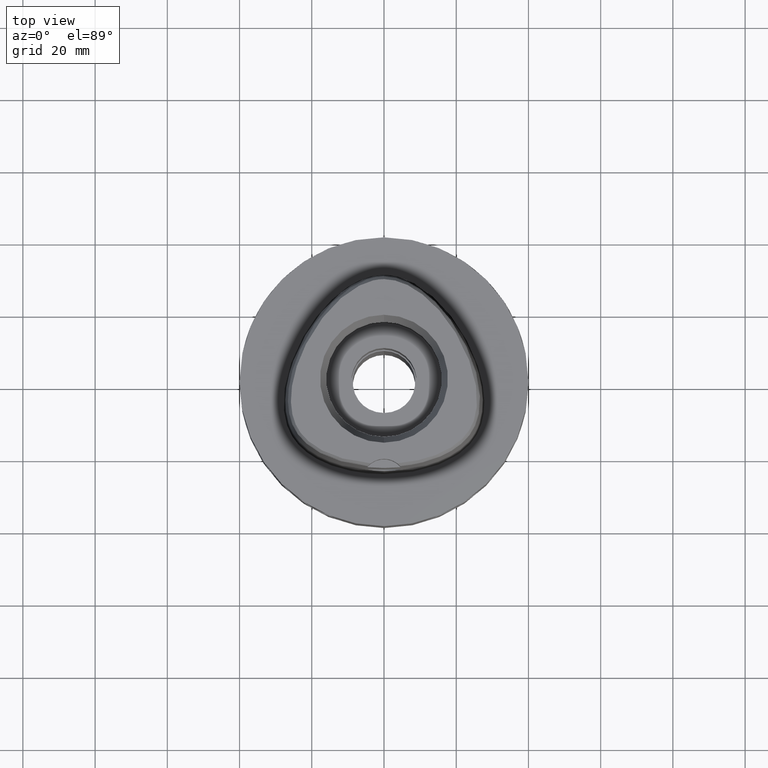
[diagram: clean part render]
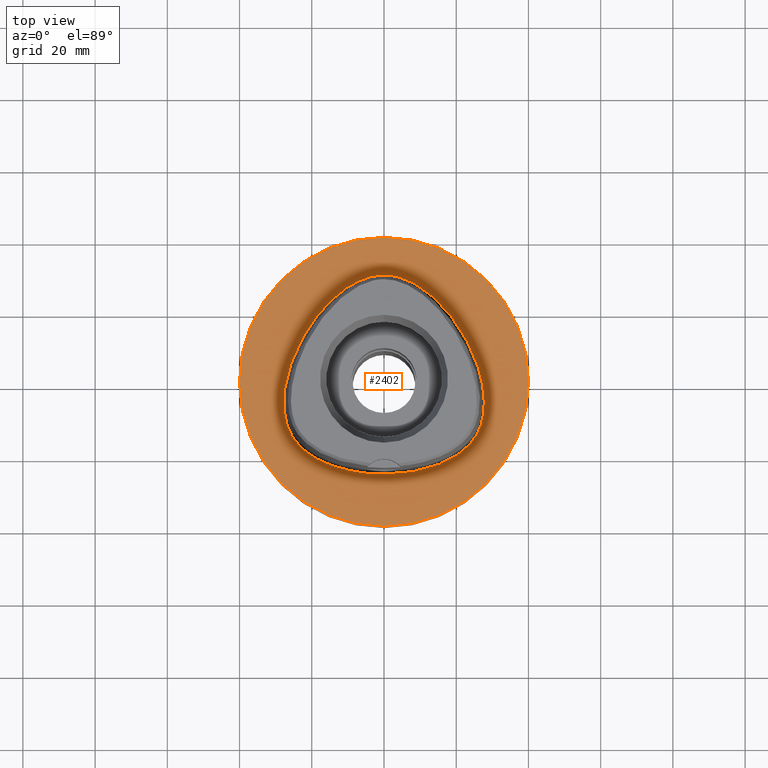
[diagram: same view with one face highlighted and labeled with its STEP entity id]
A machine part, top view. The second image highlights one B-rep face of the part: STEP entity #2402.
In plain terms, the highlighted planar face has unit normal (0, 0, -1).
Its self-contained STEP definition (entity closure, byte-faithful):
#74 = CIRCLE ( 'NONE', #2855, 40.00000000000000000 ) ;
#257 = CARTESIAN_POINT ( 'NONE',  ( 18.55019646715531678, -21.45394526901041488, 1.974420315339463911E-06 ) ) ;
#461 = EDGE_CURVE ( 'NONE', #735, #2439, #74, .T. ) ;
#469 = CARTESIAN_POINT ( 'NONE',  ( -22.33885462308207792, 12.89734373002271184, 1.591330709782914909E-06 ) ) ;
#496 = CARTESIAN_POINT ( 'NONE',  ( -27.85475985755524064, -5.337968751000536471, 1.591330709782914909E-06 ) ) ;
#506 = AXIS2_PLACEMENT_3D ( 'NONE', #4387, #2513, #4013 ) ;
#538 = CARTESIAN_POINT ( 'NONE',  ( -1.500701739221000287E-11, -25.57499999999999929, 7.708648534314000213E-14 ) ) ;
#616 = CARTESIAN_POINT ( 'NONE',  ( 26.77222809492654321, 1.900468737312429601, 1.974420315339463911E-06 ) ) ;
#641 = CARTESIAN_POINT ( 'NONE',  ( 2.676740182824368208, -25.57499995064641496, 1.974420315339464334E-06 ) ) ;
#667 = CARTESIAN_POINT ( 'NONE',  ( 27.85475984794120663, -5.337968751240707910, 1.974420315339463911E-06 ) ) ;
#700 = CARTESIAN_POINT ( 'NONE',  ( 3.149084863849021421, 29.34015620148283077, 1.974420315339463911E-06 ) ) ;
#735 = VERTEX_POINT ( 'NONE', #2167 ) ;
#832 = CARTESIAN_POINT ( 'NONE',  ( -17.75297948082780053, 19.52218747459669856, 1.591330709782914909E-06 ) ) ;
#880 = CARTESIAN_POINT ( 'NONE',  ( -18.55019647175315356, -21.45394527744709023, 1.591330709782914909E-06 ) ) ;
#975 = EDGE_CURVE ( 'NONE', #4094, #4067, #2074, .T. ) ;
#1032 = CARTESIAN_POINT ( 'NONE',  ( 6.691850457040012579, -25.24546870095779738, 1.974420315339463911E-06 ) ) ;
#1057 = EDGE_CURVE ( 'NONE', #4067, #4094, #3645, .T. ) ;
#1061 = ORIENTED_EDGE ( 'NONE', *, *, #3519, .F. ) ;
#1083 = CARTESIAN_POINT ( 'NONE',  ( 23.43253025190996652, -17.76420406707828903, 1.974420315339463911E-06 ) ) ;
#1120 = DIRECTION ( 'NONE',  ( 0.0000000000000000000, 1.000000000000000000, 0.0000000000000000000 ) ) ;
#1272 = CARTESIAN_POINT ( 'NONE',  ( -26.34912733569682430, -13.39455076523887733, 1.591330709782914909E-06 ) ) ;
#1389 = CARTESIAN_POINT ( 'NONE',  ( 27.68378748924092392, -8.751933587520793978, 1.974420315339463911E-06 ) ) ;
#1414 = CARTESIAN_POINT ( 'NONE',  ( 17.75297947338710713, 19.52218746847552922, 1.974420315339463911E-06 ) ) ;
#1441 = CARTESIAN_POINT ( 'NONE',  ( 25.20914245399029596, 6.827421856349521256, 1.974420315339463911E-06 ) ) ;
#1574 = CARTESIAN_POINT ( 'NONE',  ( 3.647951359977000177E-11, 29.57499999998999840, 7.068419923446999947E-14 ) ) ;
#1596 = CARTESIAN_POINT ( 'NONE',  ( -9.304563385799504260, 26.79191402844791625, 1.591330709782914909E-06 ) ) ;
#1644 = CARTESIAN_POINT ( 'NONE',  ( -27.53737507918980043, -1.765625006019590826, 1.591330709782914909E-06 ) ) ;
#1815 = CARTESIAN_POINT ( 'NONE',  ( 27.10051712605066854, -11.41106443955769123, 1.974420315339463911E-06 ) ) ;
#2072 = CARTESIAN_POINT ( 'NONE',  ( 0.0000000000000000000, 1.291390049700999962E-14, 1.243449787579999883E-14 ) ) ;
#2074 = B_SPLINE_CURVE_WITH_KNOTS ( 'NONE', 3,
 ( #4084, #641, #1032, #3750, #2209, #257, #3403, #1083, #2611, #4155, #4881, #1815, #1389, #667, #2945, #616, #1441, #4557, #1414, #2238, #2588, #3781, #700, #4932, #4108 ),
 .UNSPECIFIED., .F., .F.,
 ( 4, 1, 1, 1, 1, 1, 1, 1, 1, 1, 1, 1, 1, 1, 1, 1, 1, 1, 1, 1, 1, 1, 4 ),
 ( 0.0000000000000000000, 0.08333333333344000726, 0.1250000000001000033, 0.1666666666668000230, 0.2083333333333000081, 0.2500000000000000000, 0.2916666666666999919, 0.3125000000000000000, 0.3333333333333000081, 0.3541666666666000163, 0.3749999999998999689, 0.4166666666666000163, 0.4583333333332000326, 0.4999999999998999689, 0.5416666666664999852, 0.5833333333331000015, 0.6666666666664999852, 0.7499999999997000177, 0.8333333333329999704, 0.8749999999995999866, 0.9166666666663000340, 0.9583333333329000503, 1.000000000000000000 ),
 .UNSPECIFIED. ) ;
#2167 = CARTESIAN_POINT ( 'NONE',  ( 0.0000000000000000000, 40.00000000000000000, 1.243449787579999883E-14 ) ) ;
#2209 = CARTESIAN_POINT ( 'NONE',  ( 15.29776364487868179, -22.96525386016923775, 1.974420315339463911E-06 ) ) ;
#2238 = CARTESIAN_POINT ( 'NONE',  ( 13.21796077284791515, 24.04386715009237108, 1.974420315339463911E-06 ) ) ;
#2402 = ADVANCED_FACE ( 'NONE', ( #3651, #4440 ), #2842, .F. ) ;
#2404 = CIRCLE ( 'NONE', #3060, 40.00000000000000000 ) ;
#2439 = VERTEX_POINT ( 'NONE', #2641 ) ;
#2513 = DIRECTION ( 'NONE',  ( 0.0000000000000000000, 0.0000000000000000000, -1.000000000000000000 ) ) ;
#2579 = ORIENTED_EDGE ( 'NONE', *, *, #461, .F. ) ;
#2588 = CARTESIAN_POINT ( 'NONE',  ( 9.304563380787318039, 26.79191402025199764, 1.974420315339463911E-06 ) ) ;
#2611 = CARTESIAN_POINT ( 'NONE',  ( 24.77458489509248452, -16.12173825195954180, 1.974420315339463911E-06 ) ) ;
#2641 = CARTESIAN_POINT ( 'NONE',  ( 0.0000000000000000000, -40.00000000000000000, 1.243449787579999883E-14 ) ) ;
#2755 = CARTESIAN_POINT ( 'NONE',  ( -1.049694955191516454, 29.57499996022412247, 1.591330709782914909E-06 ) ) ;
#2774 = CARTESIAN_POINT ( 'NONE',  ( 3.647951359977000177E-11, 29.57499999998999840, 7.068419923446999947E-14 ) ) ;
#2799 = CARTESIAN_POINT ( 'NONE',  ( -3.149084865917926912, 29.34015621089752557, 1.591330709782914909E-06 ) ) ;
#2842 = PLANE ( 'NONE',  #506 ) ;
#2855 = AXIS2_PLACEMENT_3D ( 'NONE', #3867, #3431, #1120 ) ;
#2945 = CARTESIAN_POINT ( 'NONE',  ( 27.53737506970079707, -1.765625007468258456, 1.974420315339463911E-06 ) ) ;
#3060 = AXIS2_PLACEMENT_3D ( 'NONE', #2072, #4381, #4775 ) ;
#3142 = CARTESIAN_POINT ( 'NONE',  ( -27.68378749877610545, -8.751933588728840974, 1.591330709782914909E-06 ) ) ;
#3167 = CARTESIAN_POINT ( 'NONE',  ( -26.77222810418910370, 1.900468739774731297, 1.591330709782914909E-06 ) ) ;
#3210 = CARTESIAN_POINT ( 'NONE',  ( -25.63812386407356314, -14.80217771444611330, 1.591330709782914909E-06 ) ) ;
#3233 = CARTESIAN_POINT ( 'NONE',  ( -24.77458490282135983, -16.12173825764870472, 1.591330709782914909E-06 ) ) ;
#3248 = EDGE_LOOP ( 'NONE', ( #2579, #1061 ) ) ;
#3352 = ORIENTED_EDGE ( 'NONE', *, *, #975, .F. ) ;
#3403 = CARTESIAN_POINT ( 'NONE',  ( 21.42129056364666795, -19.59889644489260974, 1.974420315339463911E-06 ) ) ;
#3431 = DIRECTION ( 'NONE',  ( 0.0000000000000000000, 0.0000000000000000000, -1.000000000000000000 ) ) ;
#3519 = EDGE_CURVE ( 'NONE', #2439, #735, #2404, .T. ) ;
#3563 = CARTESIAN_POINT ( 'NONE',  ( -6.691850458356926268, -25.24546871046538499, 1.591330709782914909E-06 ) ) ;
#3580 = CARTESIAN_POINT ( 'NONE',  ( -13.21796077917236367, 24.04386715735749291, 1.591330709782914909E-06 ) ) ;
#3608 = CARTESIAN_POINT ( 'NONE',  ( -6.262496929320382044, 28.35083004127146822, 1.591330709782914909E-06 ) ) ;
#3645 = B_SPLINE_CURVE_WITH_KNOTS ( 'NONE', 3,
 ( #1574, #2755, #2799, #3608, #1596, #3580, #832, #469, #4741, #3167, #1644, #496, #3142, #4297, #1272, #3210, #3233, #4319, #4671, #880, #4368, #4761, #3563, #3917, #4716 ),
 .UNSPECIFIED., .F., .F.,
 ( 4, 1, 1, 1, 1, 1, 1, 1, 1, 1, 1, 1, 1, 1, 1, 1, 1, 1, 1, 1, 1, 1, 4 ),
 ( 0.0000000000000000000, 0.04166666666711999617, 0.08333333333375000929, 0.1250000000004000134, 0.1666666666671000052, 0.2500000000002999823, 0.3333333333335000148, 0.4166666666668999985, 0.4583333333333999837, 0.5000000000001000311, 0.5416666666667999674, 0.5833333333333000637, 0.6250000000000000000, 0.6458333333333000637, 0.6666666666667000474, 0.6875000000000000000, 0.7083333333332000326, 0.7499999999999000799, 0.7916666666666000163, 0.8333333333332000326, 0.8749999999998000488, 0.9166666666664999852, 1.000000000000000000 ),
 .UNSPECIFIED. ) ;
#3651 = FACE_OUTER_BOUND ( 'NONE', #3248, .T. ) ;
#3750 = CARTESIAN_POINT ( 'NONE',  ( 11.74025984185140281, -24.13566401477425316, 1.974420315339463911E-06 ) ) ;
#3781 = CARTESIAN_POINT ( 'NONE',  ( 6.262496925595645081, 28.35083003241188493, 1.974420315339463911E-06 ) ) ;
#3867 = CARTESIAN_POINT ( 'NONE',  ( 0.0000000000000000000, 1.291390049700999962E-14, 1.243449787579999883E-14 ) ) ;
#3917 = CARTESIAN_POINT ( 'NONE',  ( -2.676740183364356707, -25.57499996022011501, 1.591330709782914909E-06 ) ) ;
#3932 = EDGE_LOOP ( 'NONE', ( #4591, #3352 ) ) ;
#4013 = DIRECTION ( 'NONE',  ( 0.0000000000000000000, -1.000000000000000000, 0.0000000000000000000 ) ) ;
#4067 = VERTEX_POINT ( 'NONE', #2774 ) ;
#4084 = CARTESIAN_POINT ( 'NONE',  ( -1.500701739221000287E-11, -25.57499999999999929, 7.708648534314000213E-14 ) ) ;
#4094 = VERTEX_POINT ( 'NONE', #538 ) ;
#4108 = CARTESIAN_POINT ( 'NONE',  ( 3.647951359977000177E-11, 29.57499999998999840, 7.068419923446999947E-14 ) ) ;
#4155 = CARTESIAN_POINT ( 'NONE',  ( 25.63812385576340347, -14.80217770964259749, 1.974420315339463911E-06 ) ) ;
#4297 = CARTESIAN_POINT ( 'NONE',  ( -27.10051713529664141, -11.41106444219332694, 1.591330709782914909E-06 ) ) ;
#4319 = CARTESIAN_POINT ( 'NONE',  ( -23.43253025881029927, -17.76420407376632937, 1.591330709782914909E-06 ) ) ;
#4368 = CARTESIAN_POINT ( 'NONE',  ( -15.29776364837129599, -22.96525386911046596, 1.591330709782914909E-06 ) ) ;
#4381 = DIRECTION ( 'NONE',  ( 0.0000000000000000000, 0.0000000000000000000, -1.000000000000000000 ) ) ;
#4387 = CARTESIAN_POINT ( 'NONE',  ( 0.0000000000000000000, 1.224646799146999965E-14, 0.0000000000000000000 ) ) ;
#4440 = FACE_BOUND ( 'NONE', #3932, .T. ) ;
#4557 = CARTESIAN_POINT ( 'NONE',  ( 22.33885461475424350, 12.89734372521836825, 1.974420315339463911E-06 ) ) ;
#4591 = ORIENTED_EDGE ( 'NONE', *, *, #1057, .F. ) ;
#4671 = CARTESIAN_POINT ( 'NONE',  ( -21.42129056947131005, -19.59889645255190871, 1.591330709782914909E-06 ) ) ;
#4716 = CARTESIAN_POINT ( 'NONE',  ( -1.500701739221000287E-11, -25.57499999999999929, 7.708648534314000213E-14 ) ) ;
#4741 = CARTESIAN_POINT ( 'NONE',  ( -25.20914246289912697, 6.827421859969046380, 1.591330709782914909E-06 ) ) ;
#4761 = CARTESIAN_POINT ( 'NONE',  ( -11.74025984435814962, -24.13566402403433386, 1.591330709782914909E-06 ) ) ;
#4775 = DIRECTION ( 'NONE',  ( 0.0000000000000000000, -1.000000000000000000, 0.0000000000000000000 ) ) ;
#4881 = CARTESIAN_POINT ( 'NONE',  ( 26.34912732691072534, -13.39455076139062228, 1.974420315339463911E-06 ) ) ;
#4932 = CARTESIAN_POINT ( 'NONE',  ( 1.049694954483849862, 29.57499995063797016, 1.974420315339463911E-06 ) ) ;